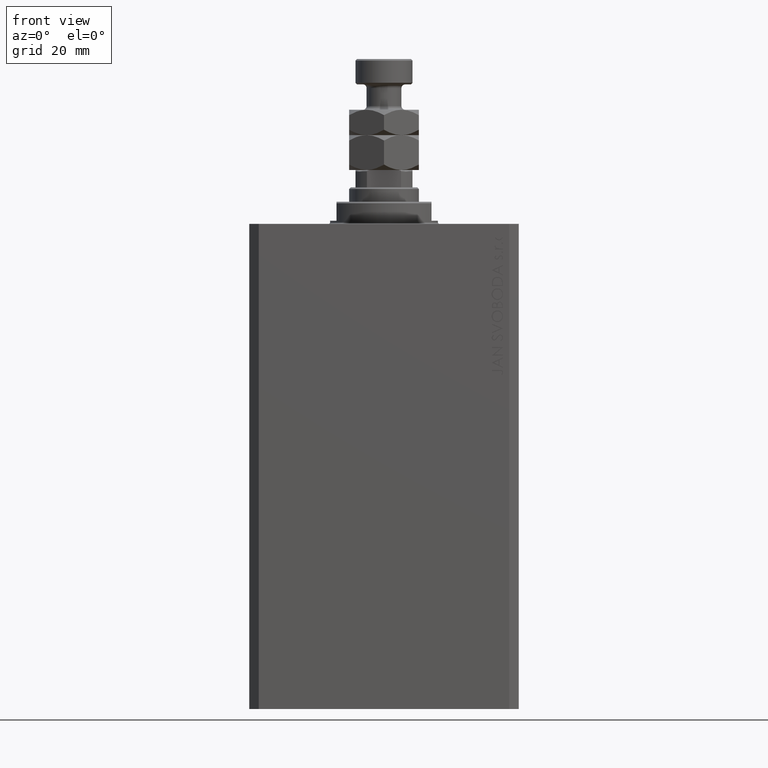
[diagram: clean part render]
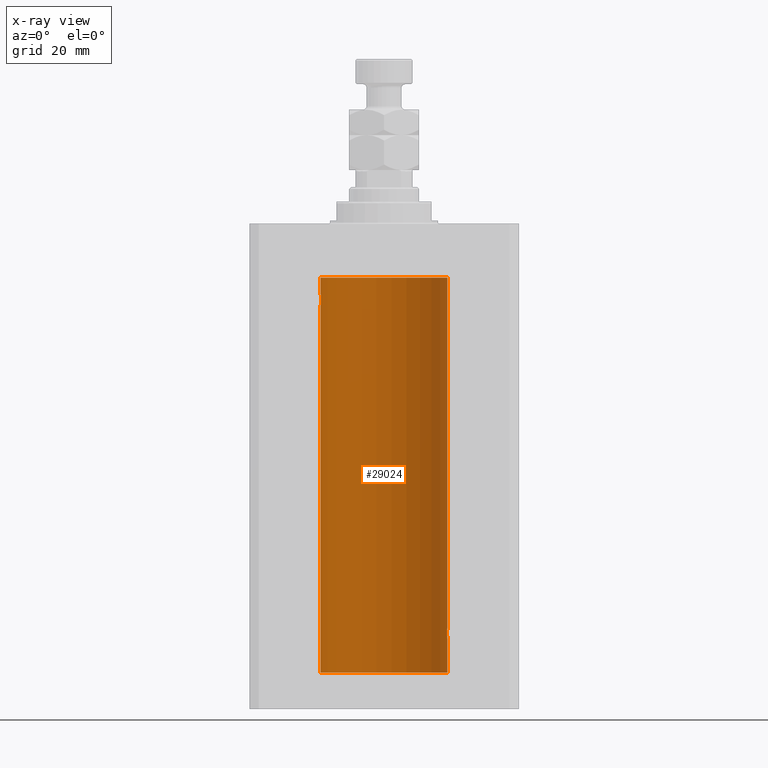
[diagram: x-ray — body ghosted, one internal face saturated and labeled with its STEP entity id]
A machine part, front view, then the same camera in x-ray: the body is ghosted and one INTERNAL B-rep face — a face not visible from any outside direction — is saturated and labeled: STEP entity #29024.
In plain terms, the highlighted cylindrical surface (partial cylindrical patch) has radius 20 mm, axis along (0, 0, 1).
Its self-contained STEP definition (entity closure, byte-faithful):
#579 = ORIENTED_EDGE ( 'NONE', *, *, #3679, .T. ) ;
#1383 = CARTESIAN_POINT ( 'NONE',  ( -19.90610216711450420, 1.935912154109700190, -24.51899474186111050 ) ) ;
#2293 = CARTESIAN_POINT ( 'NONE',  ( -20.00000000000000000, 2.449293582768784389E-15, -25.99999999999999645 ) ) ;
#2467 = LINE ( 'NONE', #30540, #16886 ) ;
#3156 = VERTEX_POINT ( 'NONE', #2293 ) ;
#3322 = CARTESIAN_POINT ( 'NONE',  ( 19.99369727434158506, 0.5181068333511547053, -130.9361228828299772 ) ) ;
#3583 = CARTESIAN_POINT ( 'NONE',  ( 19.99867993937906974, 0.2631387813862820502, -127.0130809500309113 ) ) ;
#3679 = EDGE_CURVE ( 'NONE', #26278, #36211, #40771, .T. ) ;
#4098 = EDGE_CURVE ( 'NONE', #36317, #3156, #16138, .T. ) ;
#4892 = CARTESIAN_POINT ( 'NONE',  ( -19.89974399317116394, 2.000047251570890250, -24.12981181290706445 ) ) ;
#5151 = CARTESIAN_POINT ( 'NONE',  ( 19.89974874213236333, 2.000000000000336620, -129.0000000000000000 ) ) ;
#5353 = VERTEX_POINT ( 'NONE', #42703 ) ;
#5358 = CARTESIAN_POINT ( 'NONE',  ( -19.99867931558985745, 0.2631998640366461362, -25.98691292011447374 ) ) ;
#5392 = DIRECTION ( 'NONE',  ( -0.000000000000000000, -0.000000000000000000, 1.000000000000000000 ) ) ;
#6710 = CIRCLE ( 'NONE', #36605, 20.00000000000000000 ) ;
#7088 = CARTESIAN_POINT ( 'NONE',  ( 19.89974874213236333, 2.000000000000336620, -129.0000000000000000 ) ) ;
#7472 = CARTESIAN_POINT ( 'NONE',  ( -19.98070694681040038, 0.8865903856744316025, -25.79753901127162763 ) ) ;
#7612 = FACE_OUTER_BOUND ( 'NONE', #32046, .T. ) ;
#7931 = CARTESIAN_POINT ( 'NONE',  ( -19.97510079925438475, 1.003547732426807171, -25.73489454601984150 ) ) ;
#9628 = VECTOR ( 'NONE', #5392, 1000.000000000000000 ) ;
#10323 = CARTESIAN_POINT ( 'NONE',  ( 19.89974874213236333, 2.000000000000336620, -129.0000000000000000 ) ) ;
#10952 = EDGE_CURVE ( 'NONE', #12667, #24348, #41767, .T. ) ;
#10971 = CARTESIAN_POINT ( 'NONE',  ( -19.92471474456649716, 1.735228749583835439, -25.00297226784954674 ) ) ;
#11041 = CARTESIAN_POINT ( 'NONE',  ( 19.91911433329476822, 1.797615436563599900, -128.1135710607577494 ) ) ;
#11205 = CARTESIAN_POINT ( 'NONE',  ( -20.00000000000000000, -1.269718202421245235E-16, -22.00000000000000000 ) ) ;
#11256 = ORIENTED_EDGE ( 'NONE', *, *, #4098, .F. ) ;
#12140 = ORIENTED_EDGE ( 'NONE', *, *, #32717, .T. ) ;
#12667 = VERTEX_POINT ( 'NONE', #36504 ) ;
#12811 = DIRECTION ( 'NONE',  ( 1.000000000000000000, 0.000000000000000000, 0.000000000000000000 ) ) ;
#13093 = LINE ( 'NONE', #16832, #9628 ) ;
#14062 = CARTESIAN_POINT ( 'NONE',  ( 19.99868904672146996, 0.2623009746877889015, -130.9870089850981287 ) ) ;
#14305 = CARTESIAN_POINT ( 'NONE',  ( 19.98066923111604964, 0.8874387315505276597, -130.7971214522023899 ) ) ;
#14527 = CARTESIAN_POINT ( 'NONE',  ( 19.97516523393782606, 1.002309963754522304, -130.7356447155610795 ) ) ;
#14558 = CARTESIAN_POINT ( 'NONE',  ( 19.90107458412649066, 1.986930174329753385, -128.7369201394178901 ) ) ;
#14596 = EDGE_CURVE ( 'NONE', #5353, #12667, #2467, .T. ) ;
#14712 = CARTESIAN_POINT ( 'NONE',  ( -19.90978941500366872, 1.898109641280506521, -24.64371130639850804 ) ) ;
#14766 = DIRECTION ( 'NONE',  ( 1.000000000000000000, 0.000000000000000000, 0.000000000000000000 ) ) ;
#14955 = CARTESIAN_POINT ( 'NONE',  ( -19.98996196681220638, 0.6450624715427617506, -22.10234886833925572 ) ) ;
#15403 = CARTESIAN_POINT ( 'NONE',  ( -19.97517568592526160, 1.002099838626314909, -22.26423634872104884 ) ) ;
#15666 = B_SPLINE_CURVE_WITH_KNOTS ( 'NONE', 3,
 ( #11205, #29244, #29002, #33203, #14955, #22439, #15403, #29696, #18464, #39772, #32513, #22665, #43951, #4892, #19150, #1383, #14712, #25709, #10971, #25247, #36267, #43501, #40004, #7931, #7472, #21749, #20319, #5358, #26399, #33671 ),
 .UNSPECIFIED., .F., .F.,
 ( 4, 2, 2, 2, 2, 2, 2, 2, 2, 2, 2, 2, 2, 2, 4 ),
 ( 1.233811249882840126E-19, 0.0003910512220831129202, 0.0007821024441662257319, 0.001173153666249338381, 0.001564204888332450813, 0.002346307332498675461, 0.003128409776664900326, 0.003519460998748018179, 0.003910512220831135165, 0.004301563442914253452, 0.004692614664997370871, 0.005083665887080488291, 0.005474717109163606578, 0.005865768331246723997, 0.006256819553329842284 ),
 .UNSPECIFIED. ) ;
#16138 = LINE ( 'NONE', #41893, #38423 ) ;
#16816 = EDGE_CURVE ( 'NONE', #22116, #3156, #15666, .T. ) ;
#16832 = CARTESIAN_POINT ( 'NONE',  ( -20.00000000000000000, 2.449293598294706513E-15, -141.5999999999999943 ) ) ;
#16865 = CARTESIAN_POINT ( 'NONE',  ( -20.00000000000000000, 2.449293598294706513E-15, -141.5999999999999943 ) ) ;
#16886 = VECTOR ( 'NONE', #23286, 1000.000000000000000 ) ;
#18139 = VERTEX_POINT ( 'NONE', #32884 ) ;
#18310 = CARTESIAN_POINT ( 'NONE',  ( 19.96305842179987877, 1.219858681717336024, -127.4097471253956257 ) ) ;
#18464 = CARTESIAN_POINT ( 'NONE',  ( -19.95645382900617903, 1.322305185229311064, -22.49384229619286657 ) ) ;
#18533 = CARTESIAN_POINT ( 'NONE',  ( 20.00000000000000000, 0.1305404422160244271, -126.9999999999999147 ) ) ;
#18602 = DIRECTION ( 'NONE',  ( 1.000000000000000000, 0.000000000000000000, 0.000000000000000000 ) ) ;
#19150 = CARTESIAN_POINT ( 'NONE',  ( -19.90106552791689154, 1.987020435121076734, -24.26241417820002155 ) ) ;
#19699 = VECTOR ( 'NONE', #36594, 1000.000000000000000 ) ;
#19715 = ORIENTED_EDGE ( 'NONE', *, *, #10952, .T. ) ;
#19892 = DIRECTION ( 'NONE',  ( -0.000000000000000000, -0.000000000000000000, 1.000000000000000000 ) ) ;
#20319 = CARTESIAN_POINT ( 'NONE',  ( -19.99365919015135518, 0.5196544277756711683, -25.93573148867292133 ) ) ;
#21360 = CARTESIAN_POINT ( 'NONE',  ( 19.94332236886613074, 1.507531922383783307, -127.6790994990407455 ) ) ;
#21749 = CARTESIAN_POINT ( 'NONE',  ( -19.98998539619404013, 0.6443418861413118259, -25.89789687358865322 ) ) ;
#21825 = CARTESIAN_POINT ( 'NONE',  ( 19.89974874213236333, 2.000000000000337064, -128.8694898374175466 ) ) ;
#22029 = DIRECTION ( 'NONE',  ( 0.000000000000000000, 0.000000000000000000, 1.000000000000000000 ) ) ;
#22048 = CARTESIAN_POINT ( 'NONE',  ( 19.98998987637478209, 0.6441982143731834753, -127.1020565463988277 ) ) ;
#22116 = VERTEX_POINT ( 'NONE', #40929 ) ;
#22401 = AXIS2_PLACEMENT_3D ( 'NONE', #43176, #29150, #18602 ) ;
#22439 = CARTESIAN_POINT ( 'NONE',  ( -19.98067755938510714, 0.8872481584516758168, -22.20278656943303375 ) ) ;
#22665 = CARTESIAN_POINT ( 'NONE',  ( -19.90522393307484705, 1.947330458682957177, -23.47486091545001941 ) ) ;
#22979 = CARTESIAN_POINT ( 'NONE',  ( 20.00000000000000000, 0.000000000000000000, -141.5999999999999943 ) ) ;
#23286 = DIRECTION ( 'NONE',  ( -0.000000000000000000, -0.000000000000000000, 1.000000000000000000 ) ) ;
#23548 = ORIENTED_EDGE ( 'NONE', *, *, #41834, .F. ) ;
#24348 = VERTEX_POINT ( 'NONE', #5151 ) ;
#24372 = CARTESIAN_POINT ( 'NONE',  ( 20.00000000000000000, 0.1322642052205942331, -131.0000000000000284 ) ) ;
#24915 = ORIENTED_EDGE ( 'NONE', *, *, #16816, .T. ) ;
#25247 = CARTESIAN_POINT ( 'NONE',  ( -19.93679350243183990, 1.590453176650918676, -25.21960275349743696 ) ) ;
#25326 = CARTESIAN_POINT ( 'NONE',  ( 19.92473605353365684, 1.734984354167250942, -127.9966090588858805 ) ) ;
#25557 = CARTESIAN_POINT ( 'NONE',  ( 19.90611763847109117, 1.935753518394738526, -128.4804224343485259 ) ) ;
#25709 = CARTESIAN_POINT ( 'NONE',  ( -19.91909332229799290, 1.797847595792767317, -24.88596189455837759 ) ) ;
#26278 = VERTEX_POINT ( 'NONE', #36582 ) ;
#26399 = CARTESIAN_POINT ( 'NONE',  ( -19.99999999999999645, 0.1305706983324449733, -25.99999999999998934 ) ) ;
#28126 = CARTESIAN_POINT ( 'NONE',  ( 19.92371056170336274, 1.748080295468904755, -130.0060386593724786 ) ) ;
#28158 = CARTESIAN_POINT ( 'NONE',  ( 19.95655800881796083, 1.320814917468104310, -127.4923930935969167 ) ) ;
#28589 = CARTESIAN_POINT ( 'NONE',  ( 19.95643710845398644, 1.322557776536536611, -130.5059384114668433 ) ) ;
#28611 = EDGE_CURVE ( 'NONE', #24348, #26278, #45823, .T. ) ;
#28818 = CARTESIAN_POINT ( 'NONE',  ( 19.96307037068151402, 1.219701915132741732, -130.5904134935036609 ) ) ;
#28849 = CARTESIAN_POINT ( 'NONE',  ( 19.90980722176544759, 1.897923463361385954, -128.3557453536680555 ) ) ;
#29002 = CARTESIAN_POINT ( 'NONE',  ( -19.99868965376115071, 0.2622407139811102628, -22.01298505384673732 ) ) ;
#29024 = ADVANCED_FACE ( 'NONE', ( #7612 ), #35707, .F. ) ;
#29150 = DIRECTION ( 'NONE',  ( -0.000000000000000000, -0.000000000000000000, 1.000000000000000000 ) ) ;
#29244 = CARTESIAN_POINT ( 'NONE',  ( -19.99999999999999645, 0.1322335637814733289, -21.99999999999999645 ) ) ;
#29254 = AXIS2_PLACEMENT_3D ( 'NONE', #41965, #22029, #14766 ) ;
#29696 = CARTESIAN_POINT ( 'NONE',  ( -19.96308513509966787, 1.219458756546270672, -22.40940266542446935 ) ) ;
#30134 = CARTESIAN_POINT ( 'NONE',  ( 0.000000000000000000, 0.000000000000000000, -141.5999999999999943 ) ) ;
#30540 = CARTESIAN_POINT ( 'NONE',  ( 20.00000000000000000, 0.000000000000000000, -141.5999999999999943 ) ) ;
#30732 = ORIENTED_EDGE ( 'NONE', *, *, #42188, .F. ) ;
#32046 = EDGE_LOOP ( 'NONE', ( #11256, #30732, #41489, #19715, #42181, #579, #12140, #23548, #24915 ) ) ;
#32103 = CARTESIAN_POINT ( 'NONE',  ( 20.00000000000000000, 3.320656427414327395E-15, -131.0000000000000000 ) ) ;
#32513 = CARTESIAN_POINT ( 'NONE',  ( -19.92373272380676497, 1.747830109444745927, -22.99354240926169624 ) ) ;
#32717 = EDGE_CURVE ( 'NONE', #36211, #18139, #45670, .T. ) ;
#32884 = CARTESIAN_POINT ( 'NONE',  ( -20.00000000000000000, 2.449293598294706513E-15, -17.00000000000000000 ) ) ;
#33203 = CARTESIAN_POINT ( 'NONE',  ( -19.99370013622814568, 0.5179893069484621249, -22.06384771616670903 ) ) ;
#33671 = CARTESIAN_POINT ( 'NONE',  ( -20.00000000000000000, 2.449293582768784389E-15, -25.99999999999999645 ) ) ;
#33961 = CARTESIAN_POINT ( 'NONE',  ( 20.00000000000000000, 0.000000000000000000, -17.00000000000000000 ) ) ;
#35407 = CARTESIAN_POINT ( 'NONE',  ( 19.99366205580918532, 0.5195372307044506810, -127.0642390655580556 ) ) ;
#35642 = CARTESIAN_POINT ( 'NONE',  ( 19.97511131722831479, 1.003336743019917598, -127.2649856517438991 ) ) ;
#35707 = CYLINDRICAL_SURFACE ( 'NONE', #22401, 20.00000000000000000 ) ;
#36211 = VERTEX_POINT ( 'NONE', #33961 ) ;
#36267 = CARTESIAN_POINT ( 'NONE',  ( -19.94330239452387232, 1.507796451871729504, -25.32060165083834136 ) ) ;
#36317 = VERTEX_POINT ( 'NONE', #16865 ) ;
#36504 = CARTESIAN_POINT ( 'NONE',  ( 20.00000000000000000, 3.320656427414327395E-15, -131.0000000000000000 ) ) ;
#36582 = CARTESIAN_POINT ( 'NONE',  ( 20.00000000000000000, -1.553109350199128042E-23, -127.0000000000000000 ) ) ;
#36594 = DIRECTION ( 'NONE',  ( -0.000000000000000000, -0.000000000000000000, 1.000000000000000000 ) ) ;
#36605 = AXIS2_PLACEMENT_3D ( 'NONE', #30134, #41369, #12811 ) ;
#38423 = VECTOR ( 'NONE', #19892, 1000.000000000000000 ) ;
#38659 = CARTESIAN_POINT ( 'NONE',  ( 19.93682487288204541, 1.599118048130810488, -130.2291703518122574 ) ) ;
#39617 = CARTESIAN_POINT ( 'NONE',  ( 19.93681418096177538, 1.590194273034195804, -127.7800630082155635 ) ) ;
#39772 = CARTESIAN_POINT ( 'NONE',  ( -19.93684595445884611, 1.598854313793185655, -22.77049887769366521 ) ) ;
#39842 = CARTESIAN_POINT ( 'NONE',  ( 19.98071536551673688, 0.8863972468204340815, -127.2023680539948174 ) ) ;
#40004 = CARTESIAN_POINT ( 'NONE',  ( -19.96304379627741454, 1.220099331833899736, -25.59007067689674386 ) ) ;
#40771 = LINE ( 'NONE', #22979, #19699 ) ;
#40929 = CARTESIAN_POINT ( 'NONE',  ( -20.00000000000000000, -1.269718202421245235E-16, -22.00000000000000000 ) ) ;
#41369 = DIRECTION ( 'NONE',  ( 0.000000000000000000, 0.000000000000000000, 1.000000000000000000 ) ) ;
#41489 = ORIENTED_EDGE ( 'NONE', *, *, #14596, .T. ) ;
#41767 = B_SPLINE_CURVE_WITH_KNOTS ( 'NONE', 3,
 ( #32103, #24372, #14062, #3322, #45894, #14305, #14527, #28818, #28589, #38659, #28126, #43079, #42391, #10323 ),
 .UNSPECIFIED., .F., .F.,
 ( 4, 2, 2, 2, 2, 2, 4 ),
 ( 3.226750037391780216E-18, 0.0003911418372935829518, 0.0007822836745871626510, 0.001173425511880742513, 0.001564567349174322049, 0.002346851023761540537, 0.003129134698348759458 ),
 .UNSPECIFIED. ) ;
#41834 = EDGE_CURVE ( 'NONE', #22116, #18139, #13093, .T. ) ;
#41893 = CARTESIAN_POINT ( 'NONE',  ( -20.00000000000000000, 2.449293598294706513E-15, -141.5999999999999943 ) ) ;
#41965 = CARTESIAN_POINT ( 'NONE',  ( 0.000000000000000000, 0.000000000000000000, -17.00000000000000000 ) ) ;
#42181 = ORIENTED_EDGE ( 'NONE', *, *, #28611, .T. ) ;
#42188 = EDGE_CURVE ( 'NONE', #5353, #36317, #6710, .T. ) ;
#42391 = CARTESIAN_POINT ( 'NONE',  ( 19.89974874213235623, 2.000000000000336176, -129.2611413215582559 ) ) ;
#42425 = CARTESIAN_POINT ( 'NONE',  ( 20.00000000000000000, -1.553109350199128042E-23, -127.0000000000000000 ) ) ;
#42703 = CARTESIAN_POINT ( 'NONE',  ( 20.00000000000000000, 0.000000000000000000, -141.5999999999999943 ) ) ;
#43079 = CARTESIAN_POINT ( 'NONE',  ( 19.90520750556430229, 1.947496194184496376, -129.5245541699345040 ) ) ;
#43176 = CARTESIAN_POINT ( 'NONE',  ( 0.000000000000000000, 0.000000000000000000, -141.5999999999999943 ) ) ;
#43501 = CARTESIAN_POINT ( 'NONE',  ( -19.95654117037011588, 1.321069663197671273, -25.50738641543989615 ) ) ;
#43951 = CARTESIAN_POINT ( 'NONE',  ( -19.89975827978156175, 1.999905101582726719, -23.73819846102561115 ) ) ;
#45670 = CIRCLE ( 'NONE', #29254, 20.00000000000000000 ) ;
#45823 = B_SPLINE_CURVE_WITH_KNOTS ( 'NONE', 3,
 ( #7088, #21825, #14558, #25557, #28849, #11041, #25326, #39617, #21360, #28158, #18310, #35642, #39842, #22048, #35407, #3583, #18533, #42425 ),
 .UNSPECIFIED., .F., .F.,
 ( 4, 2, 2, 2, 2, 2, 2, 2, 4 ),
 ( 0.003129134698348759458, 0.003520095305221480463, 0.003911055912094200601, 0.004302016518966922040, 0.004692977125839642612, 0.005083937732712363183, 0.005474898339585083755, 0.005865858946457805194, 0.006256819553330525766 ),
 .UNSPECIFIED. ) ;
#45894 = CARTESIAN_POINT ( 'NONE',  ( 19.98995738555794688, 0.6452086089795098234, -130.8976034536015618 ) ) ;